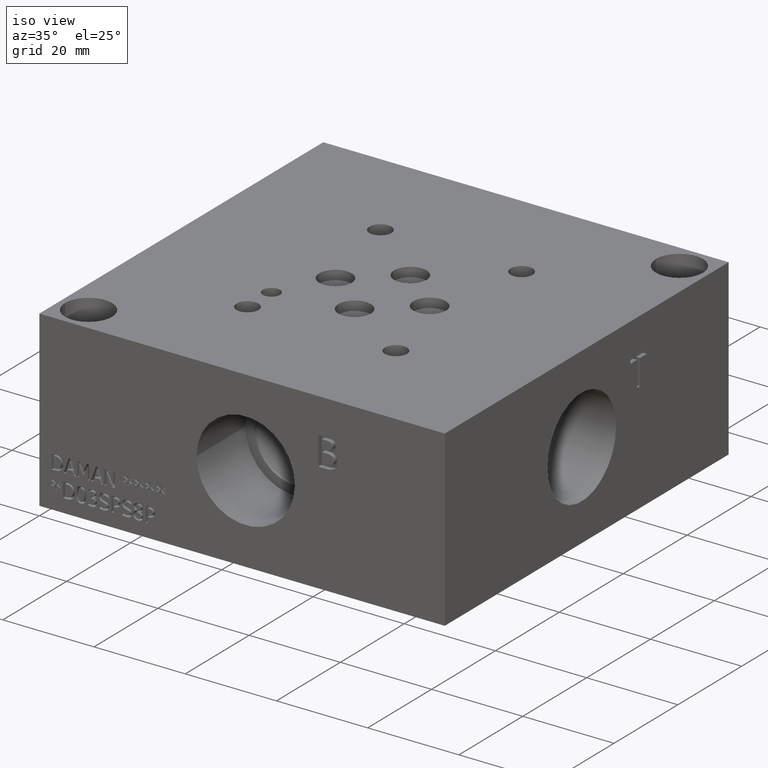
[diagram: clean part render]
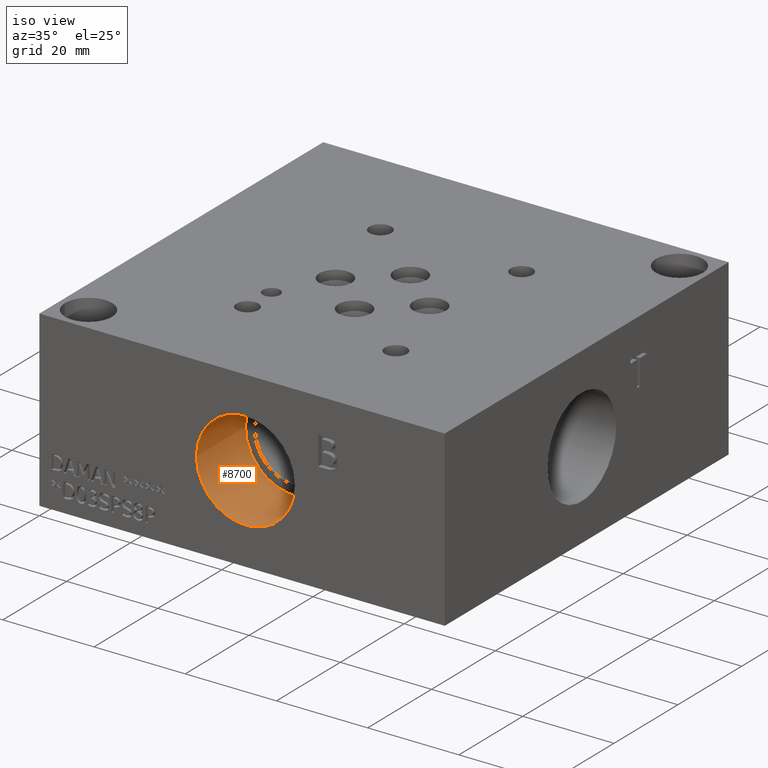
[diagram: same view with one face highlighted and labeled with its STEP entity id]
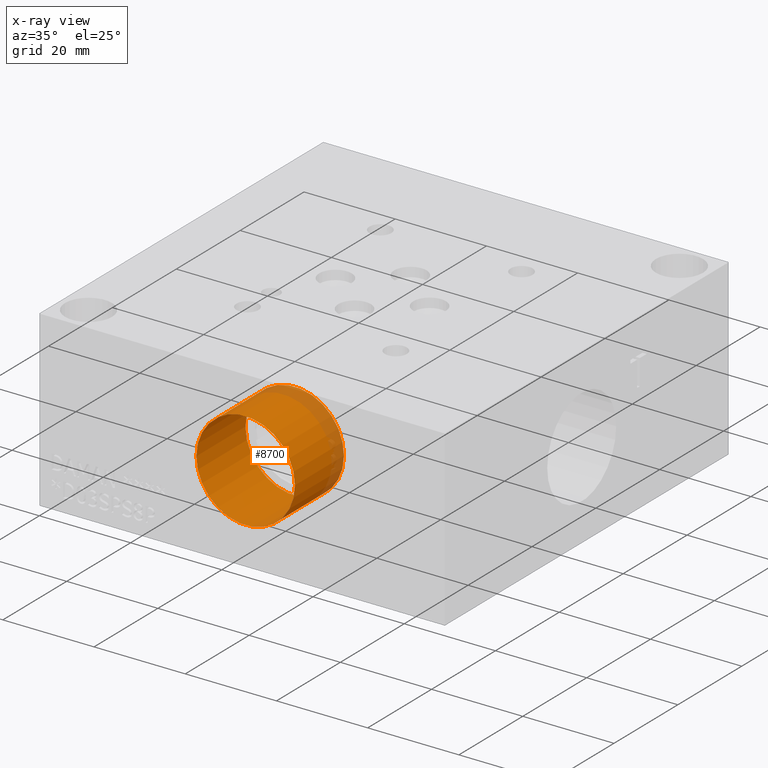
[diagram: x-ray of the same camera — body ghosted, the highlighted face saturated]
A machine part, iso view. The second image highlights one B-rep face of the part: STEP entity #8700.
The next image is the same camera in x-ray: the body ghosted, the highlighted face saturated — about 13% of this face is hidden behind the body in this view.
In plain terms, the highlighted cylindrical surface (bore or boss wall) has radius 10.795 mm, axis along (0, -1, 0).
Its self-contained STEP definition (entity closure, byte-faithful):
#18=CYLINDRICAL_SURFACE('',#9044,10.795);
#52=CIRCLE('',#8826,10.795);
#53=CIRCLE('',#8827,10.795);
#72=CIRCLE('',#9041,10.795);
#73=CIRCLE('',#9042,10.795);
#870=FACE_OUTER_BOUND('',#1353,.T.);
#1353=EDGE_LOOP('',(#7548,#7549,#7550,#7551,#7552,#7553));
#2226=LINE('',#14798,#3066);
#3066=VECTOR('',#10536,10.795);
#3703=VERTEX_POINT('',#13166);
#3704=VERTEX_POINT('',#13167);
#4110=VERTEX_POINT('',#14791);
#4111=VERTEX_POINT('',#14792);
#4684=EDGE_CURVE('',#3703,#3704,#52,.T.);
#4685=EDGE_CURVE('',#3704,#3703,#53,.T.);
#5287=EDGE_CURVE('',#4110,#4111,#72,.T.);
#5288=EDGE_CURVE('',#4111,#4110,#73,.T.);
#5290=EDGE_CURVE('',#3704,#4111,#2226,.T.);
#7548=ORIENTED_EDGE('',*,*,#4684,.F.);
#7549=ORIENTED_EDGE('',*,*,#4685,.F.);
#7550=ORIENTED_EDGE('',*,*,#5290,.T.);
#7551=ORIENTED_EDGE('',*,*,#5287,.F.);
#7552=ORIENTED_EDGE('',*,*,#5288,.F.);
#7553=ORIENTED_EDGE('',*,*,#5290,.F.);
#8700=ADVANCED_FACE('',(#870),#18,.F.);
#8826=AXIS2_PLACEMENT_3D('',#13168,#9575,#9576);
#8827=AXIS2_PLACEMENT_3D('',#13169,#9577,#9578);
#9041=AXIS2_PLACEMENT_3D('',#14793,#10528,#10529);
#9042=AXIS2_PLACEMENT_3D('',#14794,#10530,#10531);
#9044=AXIS2_PLACEMENT_3D('',#14797,#10534,#10535);
#9575=DIRECTION('center_axis',(0.,1.,0.));
#9576=DIRECTION('ref_axis',(1.,0.,0.));
#9577=DIRECTION('center_axis',(0.,1.,0.));
#9578=DIRECTION('ref_axis',(1.,0.,0.));
#10528=DIRECTION('center_axis',(0.,-1.,0.));
#10529=DIRECTION('ref_axis',(1.,0.,0.));
#10530=DIRECTION('center_axis',(0.,-1.,0.));
#10531=DIRECTION('ref_axis',(1.,0.,0.));
#10534=DIRECTION('center_axis',(0.,-1.,0.));
#10535=DIRECTION('ref_axis',(1.,0.,0.));
#10536=DIRECTION('',(0.,1.,0.));
#13166=CARTESIAN_POINT('',(56.0324,0.,19.05));
#13167=CARTESIAN_POINT('',(34.4424,0.,19.05));
#13168=CARTESIAN_POINT('Origin',(45.2374,0.,19.05));
#13169=CARTESIAN_POINT('Origin',(45.2374,0.,19.05));
#14791=CARTESIAN_POINT('',(56.0324,15.367,19.05));
#14792=CARTESIAN_POINT('',(34.4424,15.367,19.05));
#14793=CARTESIAN_POINT('Origin',(45.2374,15.367,19.05));
#14794=CARTESIAN_POINT('Origin',(45.2374,15.367,19.05));
#14797=CARTESIAN_POINT('Origin',(45.2374,7.6835,19.05));
#14798=CARTESIAN_POINT('',(34.4424,7.6835,19.05));